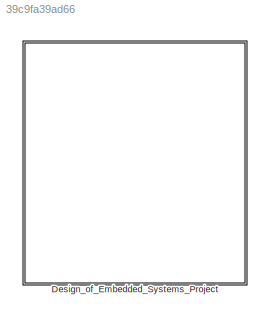
MODEL slx_39c9fa39ad66
KIND model
CONFIG AbsTol = auto
CONFIG EnableMultiTasking = on
CONFIG FixedStep = auto
CONFIG MaxStep = auto
CONFIG MinStep = auto
CONFIG RelTol = 1e-3
CONFIG SampleTimeConstraint = Unconstrained
CONFIG Solver = ode3
CONFIG SolverName = ode3
CONFIG StartTime = 0.0
CONFIG StopTime = Inf
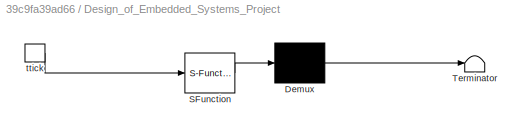
BLOCK [SubSystem] Design_of_Embedded_Systems_Project
  ErrorFcn = Stateflow.Translate.translate
  PermitHierarchicalResolution = ExplicitOnly
  Ports = [0, 0, 0, 1]
  RequestExecContextInheritance = off
  SFBlockType = Chart
  TreatAsAtomicUnit = on
  Variant = off
BLOCK [Demux] Design_of_Embedded_Systems_Project/ Demux 
  Outputs = 1
  Ports = [1, 1]
BLOCK [S-Function] Design_of_Embedded_Systems_Project/ SFunction 
  EnableBusSupport = off
  FunctionName = sf_sfun
  PortCounts = [1 1]
  Ports = [1, 1]
  SFcnIsStateOwnerBlock = off
  SFunctionDeploymentMode = off
  Tag = Stateflow S-Function Des_Model 3
BLOCK [Terminator] Design_of_Embedded_Systems_Project/ Terminator 
BLOCK [TriggerPort] Design_of_Embedded_Systems_Project/ttick
  Ports = [0, 1]
  ShowOutputPort = on
  StatesWhenEnabling = held
  TriggerType = either
  VariantControl = Variant
CHART Design_of_Embedded_Systems_Project states=5 transitions=5
  STATE_LABEL 'Car modes\n'
  STATE_LABEL 'Obstacle_Avoiding\n\nen:\n\tturnLedOn();\ndu:\n \tavoidObstacle();\n \tgoToLineSearching = true;'
  STATE_LABEL 'Setup\n\ndu:\n\tgoStraight(T5);\n\tgoToLineSearching = true;\nex:\n\tturnLedOn();\n\tgoToLineSearching = false;'
  STATE_LABEL 'Line_Following\n\nen:\n\tturnLedOff();\n\tobstacleFound = false;\ndu:\n\twhile(~obstacleFound) {\n\t    followLine();\n\t    obstacleFound = detectObstacle();\n\t    }'
  STATE_LABEL 'Line_Searching\n\nen:\n\tkeepMoving();\n\tlineFound = false;\ndu:\n\twhile(~lineFound) {\n\t    lineFound = SearchLine();\n\t    }\n'
  STATE_LABEL '[goToLineSearching == true]'
  STATE_LABEL '[Turn on the car]'
  STATE_LABEL '[goToLineSearching == true]'
  STATE_LABEL '[obstacleFound == true]'
  STATE_LABEL '[lineFound == true]'
  STATE_LABEL 'Obstacle_Avoiding\n\nen:\n\tturnLedOn();\ndu:\n \tavoidObstacle();\n \tgoToLineSearching = true;'
  STATE_LABEL 'Setup\n\ndu:\n\tgoStraight(T5);\n\tgoToLineSearching = true;\nex:\n\tturnLedOn();\n\tgoToLineSearching = false;'
  STATE_LABEL 'Line_Following\n\nen:\n\tturnLedOff();\n\tobstacleFound = false;\ndu:\n\twhile(~obstacleFound) {\n\t    followLine();\n\t    obstacleFound = detectObstacle();\n\t    }'
  STATE_LABEL 'Line_Searching\n\nen:\n\tkeepMoving();\n\tlineFound = false;\ndu:\n\twhile(~lineFound) {\n\t    lineFound = SearchLine();\n\t    }\n'
